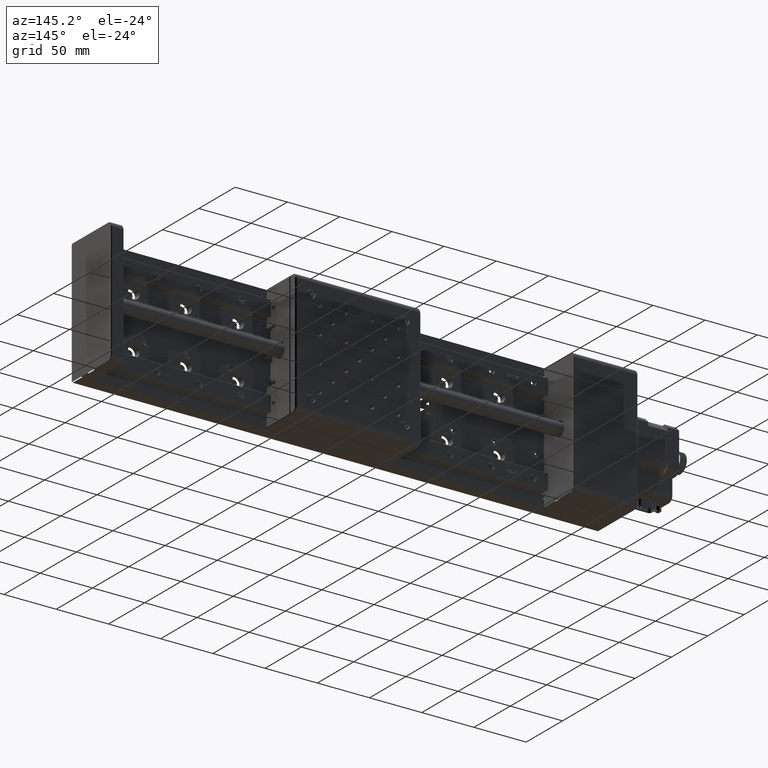
[diagram: clean part render]
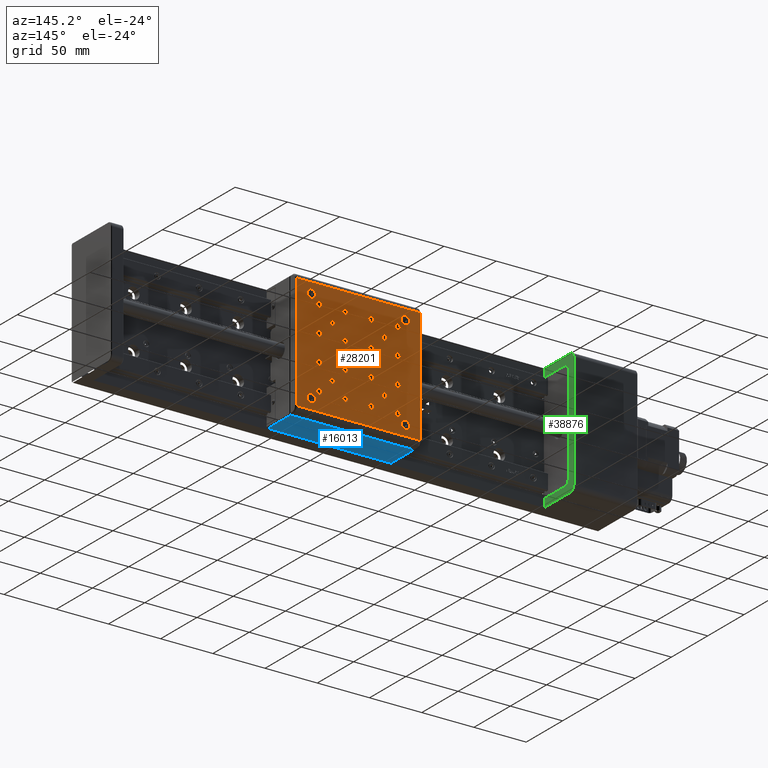
[diagram: same view with three faces highlighted in distinct colors, each labeled with its STEP entity id]
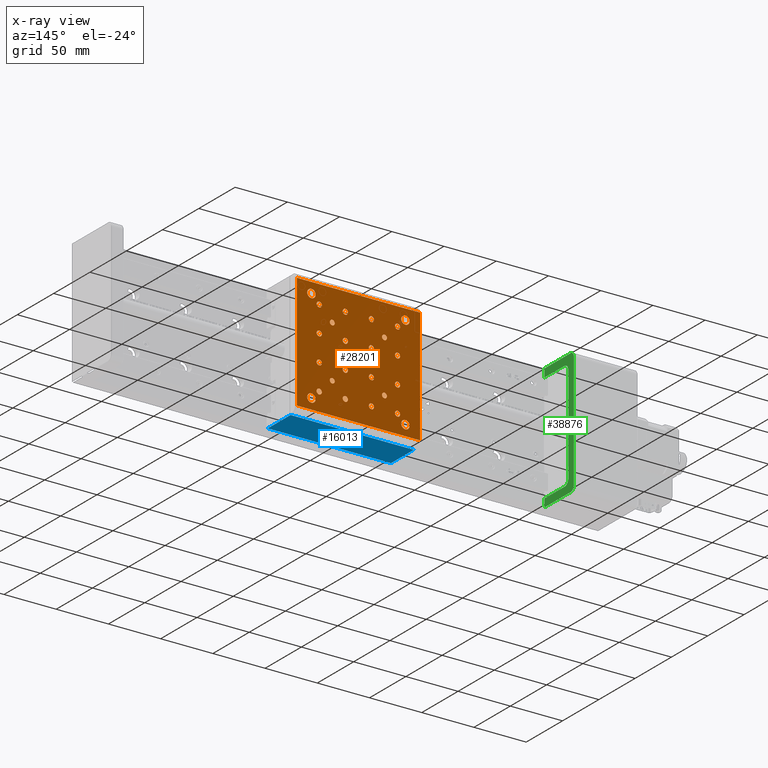
[diagram: x-ray of the same camera — body ghosted, the three highlighted faces saturated]
A machine part, auxiliary view with three faces highlighted in distinct colors.
The next image is the same camera in x-ray (body ghosted, the three faces saturated) — at least one of them is partly hidden behind the body in this view.
Their STEP definitions:

[orange] entity #28201 — the highlighted planar face has unit normal (0, -1, -0).
#44 = CIRCLE ( 'NONE', #14603, 2.500000000000002200 ) ;
#62 = CARTESIAN_POINT ( 'NONE',  ( -69.65660836600571300, 55.99999999999368300, 130.6675170193759900 ) ) ;
#145 = LINE ( 'NONE', #25422, #11281 ) ;
#210 = DIRECTION ( 'NONE',  ( 1.110223024625155600E-014, 0.0000000000000000000, 1.000000000000000000 ) ) ;
#280 = CIRCLE ( 'NONE', #38498, 2.500000000000002200 ) ;
#380 = FACE_BOUND ( 'NONE', #32188, .T. ) ;
#486 = ORIENTED_EDGE ( 'NONE', *, *, #38707, .F. ) ;
#752 = EDGE_CURVE ( 'NONE', #51167, #51560, #19968, .T. ) ;
#930 = CARTESIAN_POINT ( 'NONE',  ( -94.65660836600517300, 55.99999999999365500, 183.1675170193762200 ) ) ;
#1075 = CARTESIAN_POINT ( 'NONE',  ( -94.65660836600545700, 55.99999999999366200, 155.6675170193762200 ) ) ;
#1113 = ORIENTED_EDGE ( 'NONE', *, *, #32892, .F. ) ;
#1266 = ORIENTED_EDGE ( 'NONE', *, *, #1826, .F. ) ;
#1707 = AXIS2_PLACEMENT_3D ( 'NONE', #4629, #26132, #34028 ) ;
#1724 = CARTESIAN_POINT ( 'NONE',  ( -69.65660836600571300, 55.99999999999368300, 130.6675170193759900 ) ) ;
#1826 = EDGE_CURVE ( 'NONE', #14333, #7162, #18645, .T. ) ;
#1903 = ORIENTED_EDGE ( 'NONE', *, *, #51121, .F. ) ;
#1995 = CARTESIAN_POINT ( 'NONE',  ( -19.65660836600517700, 55.99999999999372600, 180.6675170193754500 ) ) ;
#1996 = DIRECTION ( 'NONE',  ( -1.084202172485503500E-014, 0.0000000000000000000, -1.000000000000000000 ) ) ;
#2000 = CIRCLE ( 'NONE', #6984, 2.500000000000002200 ) ;
#2008 = VERTEX_POINT ( 'NONE', #40788 ) ;
#2014 = CARTESIAN_POINT ( 'NONE',  ( -19.65660836600590900, 55.99999999999373300, 108.1675170193755200 ) ) ;
#2018 = DIRECTION ( 'NONE',  ( -1.084202172485503500E-014, 0.0000000000000000000, -1.000000000000000000 ) ) ;
#2150 = ORIENTED_EDGE ( 'NONE', *, *, #35181, .F. ) ;
#2183 = DIRECTION ( 'NONE',  ( -9.892209650289562800E-016, 1.000000000000000000, 5.551115123125781500E-017 ) ) ;
#2210 = VERTEX_POINT ( 'NONE', #12586 ) ;
#2329 = CARTESIAN_POINT ( 'NONE',  ( -82.15660836600531500, 55.99999999999366900, 165.8100904001849800 ) ) ;
#2868 = ORIENTED_EDGE ( 'NONE', *, *, #39978, .F. ) ;
#2914 = CIRCLE ( 'NONE', #17642, 4.000000000000003600 ) ;
#2937 = CARTESIAN_POINT ( 'NONE',  ( -44.65660836600592600, 55.99999999999370500, 105.6675170193757400 ) ) ;
#3107 = DIRECTION ( 'NONE',  ( 1.110223024625155600E-014, 0.0000000000000000000, 1.000000000000000000 ) ) ;
#3216 = EDGE_CURVE ( 'NONE', #9033, #46371, #21088, .T. ) ;
#3246 = CARTESIAN_POINT ( 'NONE',  ( -19.65660836600517700, 55.99999999999372600, 180.6675170193754500 ) ) ;
#3380 = VERTEX_POINT ( 'NONE', #32763 ) ;
#3385 = DIRECTION ( 'NONE',  ( 1.177367532447443400E-014, 0.0000000000000000000, 1.000000000000000000 ) ) ;
#3409 = CIRCLE ( 'NONE', #18187, 2.500000000000002200 ) ;
#3453 = EDGE_CURVE ( 'NONE', #43821, #11092, #47921, .T. ) ;
#3454 = EDGE_CURVE ( 'NONE', #52782, #39791, #7246, .T. ) ;
#3531 = CARTESIAN_POINT ( 'NONE',  ( -12.15660836600603500, 55.99999999999374000, 102.1675170193753500 ) ) ;
#3654 = DIRECTION ( 'NONE',  ( 1.110223024625155600E-014, 0.0000000000000000000, 1.000000000000000000 ) ) ;
#3833 = CARTESIAN_POINT ( 'NONE',  ( -44.65660836600518700, 55.99999999999370500, 180.6675170193757400 ) ) ;
#3886 = CARTESIAN_POINT ( 'NONE',  ( -102.1566083660060700, 55.99999999999365500, 98.16751701937634800 ) ) ;
#4015 = DIRECTION ( 'NONE',  ( -9.892209650289562800E-016, 1.000000000000000000, 5.551115123125781500E-017 ) ) ;
#4052 = VERTEX_POINT ( 'NONE', #19896 ) ;
#4097 = DIRECTION ( 'NONE',  ( -1.110223024625155600E-014, 0.0000000000000000000, -1.000000000000000000 ) ) ;
#4206 = DIRECTION ( 'NONE',  ( -9.892209650289562800E-016, 1.000000000000000000, 5.551115123125781500E-017 ) ) ;
#4235 = DIRECTION ( 'NONE',  ( -9.892209650289562800E-016, 1.000000000000000000, 5.551115123125781500E-017 ) ) ;
#4247 = EDGE_CURVE ( 'NONE', #15474, #53918, #27369, .T. ) ;
#4320 = CIRCLE ( 'NONE', #53887, 2.500000000000002200 ) ;
#4395 = CARTESIAN_POINT ( 'NONE',  ( -69.65660836600547200, 55.99999999999368300, 155.6675170193759600 ) ) ;
#4409 = DIRECTION ( 'NONE',  ( -1.110223024625155600E-014, 0.0000000000000000000, -1.000000000000000000 ) ) ;
#4411 = EDGE_LOOP ( 'NONE', ( #43298, #38618 ) ) ;
#4452 = DIRECTION ( 'NONE',  ( -9.892209650289562800E-016, 1.000000000000000000, 5.551115123125781500E-017 ) ) ;
#4458 = CARTESIAN_POINT ( 'NONE',  ( -69.65660836600547200, 55.99999999999368300, 155.6675170193759600 ) ) ;
#4629 = CARTESIAN_POINT ( 'NONE',  ( -82.15660836600577000, 55.99999999999367600, 118.1675170193761100 ) ) ;
#4963 = CARTESIAN_POINT ( 'NONE',  ( -82.15660836600577000, 55.99999999999367600, 118.1675170193761100 ) ) ;
#5040 = DIRECTION ( 'NONE',  ( -1.110223024625155600E-014, 0.0000000000000000000, -1.000000000000000000 ) ) ;
#5060 = AXIS2_PLACEMENT_3D ( 'NONE', #21952, #29775, #29954 ) ;
#5235 = VECTOR ( 'NONE', #30221, 1000.000000000000000 ) ;
#5550 = CIRCLE ( 'NONE', #43278, 2.357426619191055100 ) ;
#5608 = AXIS2_PLACEMENT_3D ( 'NONE', #46799, #13487, #51029 ) ;
#5668 = EDGE_LOOP ( 'NONE', ( #486, #40989 ) ) ;
#6088 = FACE_BOUND ( 'NONE', #45733, .T. ) ;
#6123 = CARTESIAN_POINT ( 'NONE',  ( -94.65660836600545700, 55.99999999999366200, 155.6675170193762200 ) ) ;
#6285 = VERTEX_POINT ( 'NONE', #14866 ) ;
#6302 = VERTEX_POINT ( 'NONE', #39597 ) ;
#6308 = CARTESIAN_POINT ( 'NONE',  ( -94.65660836600564200, 55.99999999999366200, 133.1675170193762200 ) ) ;
#6371 = VERTEX_POINT ( 'NONE', #23987 ) ;
#6420 = EDGE_LOOP ( 'NONE', ( #28544, #25878 ) ) ;
#6480 = DIRECTION ( 'NONE',  ( -1.110223024625155600E-014, 0.0000000000000000000, -1.000000000000000000 ) ) ;
#6700 = EDGE_CURVE ( 'NONE', #32411, #2210, #14110, .T. ) ;
#6855 = VERTEX_POINT ( 'NONE', #18251 ) ;
#6954 = ORIENTED_EDGE ( 'NONE', *, *, #13326, .F. ) ;
#6984 = AXIS2_PLACEMENT_3D ( 'NONE', #51655, #26570, #46869 ) ;
#7008 = EDGE_LOOP ( 'NONE', ( #17386, #12141 ) ) ;
#7162 = VERTEX_POINT ( 'NONE', #13366 ) ;
#7167 = VERTEX_POINT ( 'NONE', #43723 ) ;
#7171 = DIRECTION ( 'NONE',  ( 1.085435753623974200E-014, -5.551115123125781500E-017, 1.000000000000000000 ) ) ;
#7246 = CIRCLE ( 'NONE', #29316, 2.500000000000002200 ) ;
#7492 = AXIS2_PLACEMENT_3D ( 'NONE', #42466, #46503, #21097 ) ;
#7590 = EDGE_CURVE ( 'NONE', #11092, #43821, #43451, .T. ) ;
#7875 = DIRECTION ( 'NONE',  ( -9.892209650289562800E-016, 1.000000000000000000, 5.551115123125781500E-017 ) ) ;
#7973 = ORIENTED_EDGE ( 'NONE', *, *, #6700, .F. ) ;
#8360 = CIRCLE ( 'NONE', #54454, 2.500000000000002200 ) ;
#8399 = CIRCLE ( 'NONE', #47219, 2.357426619191055100 ) ;
#8637 = EDGE_CURVE ( 'NONE', #48915, #29601, #44619, .T. ) ;
#8667 = DIRECTION ( 'NONE',  ( -9.892209650289562800E-016, 1.000000000000000000, 5.551115123125781500E-017 ) ) ;
#8674 = CIRCLE ( 'NONE', #5060, 2.357426619191055100 ) ;
#8734 = DIRECTION ( 'NONE',  ( -1.110223024625155600E-014, 0.0000000000000000000, -1.000000000000000000 ) ) ;
#8934 = AXIS2_PLACEMENT_3D ( 'NONE', #2937, #36905, #3107 ) ;
#9033 = VERTEX_POINT ( 'NONE', #31912 ) ;
#9048 = EDGE_CURVE ( 'NONE', #15786, #7167, #44572, .T. ) ;
#9177 = CIRCLE ( 'NONE', #26713, 4.000000000000003600 ) ;
#9329 = CIRCLE ( 'NONE', #28024, 2.500000000000002200 ) ;
#9367 = VERTEX_POINT ( 'NONE', #930 ) ;
#9705 = CIRCLE ( 'NONE', #40528, 2.500000000000002200 ) ;
#9724 = PLANE ( 'NONE',  #26634 ) ;
#9764 = VERTEX_POINT ( 'NONE', #16832 ) ;
#9822 = EDGE_LOOP ( 'NONE', ( #22767, #1113 ) ) ;
#9934 = CIRCLE ( 'NONE', #1707, 2.357426619191041400 ) ;
#10072 = FACE_BOUND ( 'NONE', #9822, .T. ) ;
#10933 = ORIENTED_EDGE ( 'NONE', *, *, #39181, .F. ) ;
#10947 = AXIS2_PLACEMENT_3D ( 'NONE', #16754, #41627, #4409 ) ;
#11092 = VERTEX_POINT ( 'NONE', #36071 ) ;
#11210 = VECTOR ( 'NONE', #7171, 1000.000000000000000 ) ;
#11281 = VECTOR ( 'NONE', #37719, 1000.000000000000000 ) ;
#11560 = VERTEX_POINT ( 'NONE', #13231 ) ;
#11646 = AXIS2_PLACEMENT_3D ( 'NONE', #37240, #33382, #12116 ) ;
#11881 = CIRCLE ( 'NONE', #30890, 2.500000000000002200 ) ;
#11914 = CARTESIAN_POINT ( 'NONE',  ( -94.65660836600594100, 55.99999999999366200, 103.1675170193762100 ) ) ;
#12103 = DIRECTION ( 'NONE',  ( -1.110223024625155600E-014, 0.0000000000000000000, -1.000000000000000000 ) ) ;
#12116 = DIRECTION ( 'NONE',  ( 1.110223024625155600E-014, 0.0000000000000000000, 1.000000000000000000 ) ) ;
#12141 = ORIENTED_EDGE ( 'NONE', *, *, #51511, .F. ) ;
#12168 = VERTEX_POINT ( 'NONE', #6308 ) ;
#12300 = CARTESIAN_POINT ( 'NONE',  ( -44.65660836600594800, 55.99999999999370500, 103.1675170193757400 ) ) ;
#12324 = DIRECTION ( 'NONE',  ( -1.110223024625155600E-014, 0.0000000000000000000, -1.000000000000000000 ) ) ;
#12526 = CARTESIAN_POINT ( 'NONE',  ( -69.65660836600594100, 55.99999999999368300, 105.6675170193759900 ) ) ;
#12586 = CARTESIAN_POINT ( 'NONE',  ( -44.65660836600542200, 55.99999999999370500, 158.1675170193757400 ) ) ;
#12658 = FACE_BOUND ( 'NONE', #17787, .T. ) ;
#12795 = AXIS2_PLACEMENT_3D ( 'NONE', #16801, #33672, #29615 ) ;
#13044 = AXIS2_PLACEMENT_3D ( 'NONE', #50489, #42245, #29437 ) ;
#13155 = CARTESIAN_POINT ( 'NONE',  ( -69.65660836600542900, 55.99999999999368300, 158.1675170193759900 ) ) ;
#13231 = CARTESIAN_POINT ( 'NONE',  ( -94.65660836600569900, 55.99999999999366200, 128.1675170193761900 ) ) ;
#13326 = EDGE_CURVE ( 'NONE', #20187, #9367, #9329, .T. ) ;
#13366 = CARTESIAN_POINT ( 'NONE',  ( -19.65660836600596500, 55.99999999999373300, 103.1675170193755100 ) ) ;
#13420 = EDGE_CURVE ( 'NONE', #11560, #12168, #11881, .T. ) ;
#13470 = ORIENTED_EDGE ( 'NONE', *, *, #18726, .T. ) ;
#13487 = DIRECTION ( 'NONE',  ( -9.892209650289562800E-016, 1.000000000000000000, 5.551115123125781500E-017 ) ) ;
#13601 = CARTESIAN_POINT ( 'NONE',  ( -19.65660836600572400, 55.99999999999373300, 130.6675170193755400 ) ) ;
#13698 = DIRECTION ( 'NONE',  ( -9.892209650289562800E-016, 1.000000000000000000, 5.551115123125781500E-017 ) ) ;
#13752 = EDGE_CURVE ( 'NONE', #6371, #4052, #9934, .T. ) ;
#13764 = DIRECTION ( 'NONE',  ( 1.110223024625155600E-014, 0.0000000000000000000, 1.000000000000000000 ) ) ;
#13830 = CARTESIAN_POINT ( 'NONE',  ( -94.65660836600520200, 55.99999999999365500, 180.6675170193762200 ) ) ;
#13866 = FACE_BOUND ( 'NONE', #44387, .T. ) ;
#13908 = CIRCLE ( 'NONE', #42708, 2.500000000000002200 ) ;
#14092 = DIRECTION ( 'NONE',  ( -1.110223024625155600E-014, 0.0000000000000000000, -1.000000000000000000 ) ) ;
#14110 = CIRCLE ( 'NONE', #5608, 2.500000000000002200 ) ;
#14142 = DIRECTION ( 'NONE',  ( -9.892209650289562800E-016, 1.000000000000000000, 5.551115123125781500E-017 ) ) ;
#14287 = EDGE_LOOP ( 'NONE', ( #35156, #42574 ) ) ;
#14333 = VERTEX_POINT ( 'NONE', #2014 ) ;
#14419 = ORIENTED_EDGE ( 'NONE', *, *, #33725, .F. ) ;
#14603 = AXIS2_PLACEMENT_3D ( 'NONE', #30071, #22313, #35297 ) ;
#14620 = AXIS2_PLACEMENT_3D ( 'NONE', #34611, #25976, #5040 ) ;
#14763 = VERTEX_POINT ( 'NONE', #35693 ) ;
#14866 = CARTESIAN_POINT ( 'NONE',  ( -19.65660836600569200, 55.99999999999373300, 133.1675170193755400 ) ) ;
#14912 = AXIS2_PLACEMENT_3D ( 'NONE', #16975, #29233, #46248 ) ;
#14950 = DIRECTION ( 'NONE',  ( -9.892209650289562800E-016, 1.000000000000000000, 5.551115123125781500E-017 ) ) ;
#15044 = ORIENTED_EDGE ( 'NONE', *, *, #39491, .F. ) ;
#15345 = EDGE_CURVE ( 'NONE', #29535, #25966, #9177, .T. ) ;
#15474 = VERTEX_POINT ( 'NONE', #19645 ) ;
#15638 = EDGE_LOOP ( 'NONE', ( #41072, #31268 ) ) ;
#15724 = EDGE_LOOP ( 'NONE', ( #37248, #25851 ) ) ;
#15776 = CARTESIAN_POINT ( 'NONE',  ( -102.1566083660060700, 55.99999999999365500, 98.16751701937634800 ) ) ;
#15786 = VERTEX_POINT ( 'NONE', #43596 ) ;
#15810 = DIRECTION ( 'NONE',  ( -9.892209650289562800E-016, 1.000000000000000000, 5.551115123125781500E-017 ) ) ;
#16089 = ORIENTED_EDGE ( 'NONE', *, *, #41367, .T. ) ;
#16152 = DIRECTION ( 'NONE',  ( 1.000000000000000000, 9.892209650289541100E-016, -1.085435753623975300E-014 ) ) ;
#16591 = CARTESIAN_POINT ( 'NONE',  ( -32.15660836600534400, 55.99999999999371900, 165.8100904001845500 ) ) ;
#16650 = CIRCLE ( 'NONE', #41571, 4.000000000000003600 ) ;
#16718 = ORIENTED_EDGE ( 'NONE', *, *, #44116, .F. ) ;
#16733 = AXIS2_PLACEMENT_3D ( 'NONE', #3833, #37452, #12324 ) ;
#16754 = CARTESIAN_POINT ( 'NONE',  ( -57.15660836600559200, 55.99999999999369000, 143.1675170193758500 ) ) ;
#16801 = CARTESIAN_POINT ( 'NONE',  ( -12.15660836600509300, 55.99999999999373300, 188.1675170193753700 ) ) ;
#16832 = CARTESIAN_POINT ( 'NONE',  ( -102.1566083660051400, 55.99999999999365500, 184.1675170193763600 ) ) ;
#16975 = CARTESIAN_POINT ( 'NONE',  ( -19.65660836600544700, 55.99999999999373300, 155.6675170193754500 ) ) ;
#16983 = DIRECTION ( 'NONE',  ( 1.110223024625155600E-014, 0.0000000000000000000, 1.000000000000000000 ) ) ;
#17011 = EDGE_CURVE ( 'NONE', #22183, #38826, #39180, .T. ) ;
#17283 = CARTESIAN_POINT ( 'NONE',  ( -69.65660836600568500, 55.99999999999368300, 133.1675170193759900 ) ) ;
#17386 = ORIENTED_EDGE ( 'NONE', *, *, #17011, .F. ) ;
#17496 = CARTESIAN_POINT ( 'NONE',  ( -12.15660836600607900, 55.99999999999374000, 98.16751701937533900 ) ) ;
#17513 = ORIENTED_EDGE ( 'NONE', *, *, #33008, .F. ) ;
#17560 = CIRCLE ( 'NONE', #12795, 4.000000000000003600 ) ;
#17642 = AXIS2_PLACEMENT_3D ( 'NONE', #17725, #13698, #46829 ) ;
#17671 = CARTESIAN_POINT ( 'NONE',  ( -82.15660836600530100, 55.99999999999366900, 168.1675170193760200 ) ) ;
#17725 = CARTESIAN_POINT ( 'NONE',  ( -102.1566083660051000, 55.99999999999365500, 188.1675170193763600 ) ) ;
#17753 = VERTEX_POINT ( 'NONE', #44348 ) ;
#17787 = EDGE_LOOP ( 'NONE', ( #49428, #44551 ) ) ;
#17895 = VERTEX_POINT ( 'NONE', #12300 ) ;
#18081 = CARTESIAN_POINT ( 'NONE',  ( -44.65660836600548600, 55.99999999999370500, 153.1675170193757400 ) ) ;
#18187 = AXIS2_PLACEMENT_3D ( 'NONE', #41567, #41932, #46522 ) ;
#18251 = CARTESIAN_POINT ( 'NONE',  ( -19.65660836600520500, 55.99999999999372600, 178.1675170193754500 ) ) ;
#18606 = ORIENTED_EDGE ( 'NONE', *, *, #3216, .F. ) ;
#18645 = CIRCLE ( 'NONE', #27864, 2.500000000000002200 ) ;
#18726 = EDGE_CURVE ( 'NONE', #45933, #48915, #26243, .T. ) ;
#19006 = AXIS2_PLACEMENT_3D ( 'NONE', #27555, #22705, #6480 ) ;
#19332 = CIRCLE ( 'NONE', #19006, 2.500000000000002200 ) ;
#19563 = AXIS2_PLACEMENT_3D ( 'NONE', #39972, #47847, #1996 ) ;
#19571 = EDGE_LOOP ( 'NONE', ( #26045, #18606 ) ) ;
#19645 = CARTESIAN_POINT ( 'NONE',  ( -69.65660836600589800, 55.99999999999368300, 108.1675170193759900 ) ) ;
#19794 = AXIS2_PLACEMENT_3D ( 'NONE', #17496, #47331, #42931 ) ;
#19854 = CARTESIAN_POINT ( 'NONE',  ( -44.65660836600567100, 55.99999999999370500, 133.1675170193757400 ) ) ;
#19862 = DIRECTION ( 'NONE',  ( 1.110223024625155600E-014, 0.0000000000000000000, 1.000000000000000000 ) ) ;
#19896 = CARTESIAN_POINT ( 'NONE',  ( -82.15660836600572700, 55.99999999999367600, 120.5249436385671500 ) ) ;
#19968 = CIRCLE ( 'NONE', #23651, 2.500000000000002200 ) ;
#20072 = CARTESIAN_POINT ( 'NONE',  ( -94.65660836600523000, 55.99999999999365500, 178.1675170193762200 ) ) ;
#20165 = DIRECTION ( 'NONE',  ( -9.892209650289562800E-016, 1.000000000000000000, 5.551115123125781500E-017 ) ) ;
#20187 = VERTEX_POINT ( 'NONE', #20072 ) ;
#20227 = EDGE_LOOP ( 'NONE', ( #38114, #22502 ) ) ;
#20286 = ORIENTED_EDGE ( 'NONE', *, *, #47979, .F. ) ;
#20355 = EDGE_LOOP ( 'NONE', ( #46962, #16718 ) ) ;
#20364 = CARTESIAN_POINT ( 'NONE',  ( -94.65660836600520200, 55.99999999999365500, 180.6675170193762200 ) ) ;
#20372 = EDGE_CURVE ( 'NONE', #6302, #53335, #8399, .T. ) ;
#20420 = CARTESIAN_POINT ( 'NONE',  ( -19.65660836600594100, 55.99999999999373300, 105.6675170193755200 ) ) ;
#20559 = CARTESIAN_POINT ( 'NONE',  ( -94.65660836600586900, 55.99999999999366200, 108.1675170193762200 ) ) ;
#20619 = DIRECTION ( 'NONE',  ( -1.110223024625155600E-014, 0.0000000000000000000, -1.000000000000000000 ) ) ;
#20728 = EDGE_CURVE ( 'NONE', #3380, #6855, #9705, .T. ) ;
#20990 = DIRECTION ( 'NONE',  ( 1.110223024625155600E-014, 0.0000000000000000000, 1.000000000000000000 ) ) ;
#21005 = CARTESIAN_POINT ( 'NONE',  ( -19.65660836600572400, 55.99999999999373300, 130.6675170193755400 ) ) ;
#21088 = CIRCLE ( 'NONE', #31437, 2.357426619191055100 ) ;
#21097 = DIRECTION ( 'NONE',  ( -1.110223024625155600E-014, 0.0000000000000000000, -1.000000000000000000 ) ) ;
#21234 = DIRECTION ( 'NONE',  ( -1.040834085586083300E-014, 0.0000000000000000000, -1.000000000000000000 ) ) ;
#21240 = CIRCLE ( 'NONE', #26629, 2.500000000000002200 ) ;
#21277 = FACE_BOUND ( 'NONE', #22320, .T. ) ;
#21398 = CARTESIAN_POINT ( 'NONE',  ( -102.1566083660050600, 55.99999999999365500, 192.1675170193763600 ) ) ;
#21530 = DIRECTION ( 'NONE',  ( -1.177367532447450200E-014, 0.0000000000000000000, -1.000000000000000000 ) ) ;
#21779 = EDGE_CURVE ( 'NONE', #39791, #52782, #52737, .T. ) ;
#21952 = CARTESIAN_POINT ( 'NONE',  ( -82.15660836600530100, 55.99999999999366900, 168.1675170193760200 ) ) ;
#22183 = VERTEX_POINT ( 'NONE', #46775 ) ;
#22313 = DIRECTION ( 'NONE',  ( -9.892209650289562800E-016, 1.000000000000000000, 5.551115123125781500E-017 ) ) ;
#22320 = EDGE_LOOP ( 'NONE', ( #14419, #28792 ) ) ;
#22502 = ORIENTED_EDGE ( 'NONE', *, *, #20372, .F. ) ;
#22516 = VERTEX_POINT ( 'NONE', #20559 ) ;
#22618 = EDGE_CURVE ( 'NONE', #35450, #29872, #3409, .T. ) ;
#22650 = EDGE_CURVE ( 'NONE', #52752, #39619, #21240, .T. ) ;
#22659 = AXIS2_PLACEMENT_3D ( 'NONE', #21005, #4235, #210 ) ;
#22669 = AXIS2_PLACEMENT_3D ( 'NONE', #4963, #30484, #21530 ) ;
#22705 = DIRECTION ( 'NONE',  ( -9.892209650289562800E-016, 1.000000000000000000, 5.551115123125781500E-017 ) ) ;
#22767 = ORIENTED_EDGE ( 'NONE', *, *, #9048, .F. ) ;
#22802 = DIRECTION ( 'NONE',  ( 1.110223024625155600E-014, 0.0000000000000000000, 1.000000000000000000 ) ) ;
#22957 = CARTESIAN_POINT ( 'NONE',  ( -44.65660836600545700, 55.99999999999370500, 155.6675170193757400 ) ) ;
#23544 = EDGE_LOOP ( 'NONE', ( #38461, #41418 ) ) ;
#23545 = EDGE_CURVE ( 'NONE', #25966, #29535, #34219, .T. ) ;
#23651 = AXIS2_PLACEMENT_3D ( 'NONE', #4458, #33849, #16983 ) ;
#23849 = DIRECTION ( 'NONE',  ( -9.892209650289562800E-016, 1.000000000000000000, 5.551115123125781500E-017 ) ) ;
#23877 = CIRCLE ( 'NONE', #19563, 4.000000000000003600 ) ;
#23987 = CARTESIAN_POINT ( 'NONE',  ( -82.15660836600579800, 55.99999999999367600, 115.8100904001850800 ) ) ;
#24007 = CARTESIAN_POINT ( 'NONE',  ( -57.15660836600562100, 55.99999999999369000, 140.6675170193758500 ) ) ;
#24031 = DIRECTION ( 'NONE',  ( -9.892209650289562800E-016, 1.000000000000000000, 5.551115123125781500E-017 ) ) ;
#24699 = EDGE_CURVE ( 'NONE', #26547, #28572, #17560, .T. ) ;
#25044 = DIRECTION ( 'NONE',  ( -9.892209650289562800E-016, 1.000000000000000000, 5.551115123125781500E-017 ) ) ;
#25112 = FACE_BOUND ( 'NONE', #20227, .T. ) ;
#25251 = EDGE_CURVE ( 'NONE', #7162, #14333, #4320, .T. ) ;
#25422 = CARTESIAN_POINT ( 'NONE',  ( 1.843391633994412300, 55.99999999999375400, 143.1675170193752300 ) ) ;
#25453 = CARTESIAN_POINT ( 'NONE',  ( -69.65660836600515900, 55.99999999999368300, 183.1675170193759600 ) ) ;
#25730 = AXIS2_PLACEMENT_3D ( 'NONE', #4395, #4015, #45810 ) ;
#25812 = ORIENTED_EDGE ( 'NONE', *, *, #50704, .F. ) ;
#25851 = ORIENTED_EDGE ( 'NONE', *, *, #32731, .F. ) ;
#25878 = ORIENTED_EDGE ( 'NONE', *, *, #3453, .F. ) ;
#25966 = VERTEX_POINT ( 'NONE', #3531 ) ;
#25976 = DIRECTION ( 'NONE',  ( -9.892209650289562800E-016, 1.000000000000000000, 5.551115123125781500E-017 ) ) ;
#26045 = ORIENTED_EDGE ( 'NONE', *, *, #53586, .F. ) ;
#26122 = CARTESIAN_POINT ( 'NONE',  ( -94.65660836600548600, 55.99999999999366200, 153.1675170193762200 ) ) ;
#26127 = VERTEX_POINT ( 'NONE', #21398 ) ;
#26132 = DIRECTION ( 'NONE',  ( -9.892209650289562800E-016, 1.000000000000000000, 5.551115123125781500E-017 ) ) ;
#26243 = LINE ( 'NONE', #42462, #5235 ) ;
#26352 = EDGE_CURVE ( 'NONE', #39619, #52752, #280, .T. ) ;
#26455 = FACE_BOUND ( 'NONE', #53060, .T. ) ;
#26547 = VERTEX_POINT ( 'NONE', #32490 ) ;
#26570 = DIRECTION ( 'NONE',  ( -9.892209650289562800E-016, 1.000000000000000000, 5.551115123125781500E-017 ) ) ;
#26629 = AXIS2_PLACEMENT_3D ( 'NONE', #1075, #51124, #13764 ) ;
#26634 = AXIS2_PLACEMENT_3D ( 'NONE', #35036, #39228, #47988 ) ;
#26713 = AXIS2_PLACEMENT_3D ( 'NONE', #35986, #51920, #2018 ) ;
#26829 = DIRECTION ( 'NONE',  ( 1.177367532447443400E-014, 0.0000000000000000000, 1.000000000000000000 ) ) ;
#26875 = DIRECTION ( 'NONE',  ( -9.892209650289562800E-016, 1.000000000000000000, 5.551115123125781500E-017 ) ) ;
#26933 = CIRCLE ( 'NONE', #37942, 4.000000000000003600 ) ;
#27027 = EDGE_LOOP ( 'NONE', ( #28350, #1903 ) ) ;
#27064 = FACE_BOUND ( 'NONE', #45135, .T. ) ;
#27087 = FACE_BOUND ( 'NONE', #40339, .T. ) ;
#27369 = CIRCLE ( 'NONE', #35482, 2.500000000000002200 ) ;
#27528 = CARTESIAN_POINT ( 'NONE',  ( -94.65660836600542900, 55.99999999999366200, 158.1675170193762200 ) ) ;
#27555 = CARTESIAN_POINT ( 'NONE',  ( -94.65660836600591200, 55.99999999999366200, 105.6675170193762100 ) ) ;
#27657 = CIRCLE ( 'NONE', #8934, 2.500000000000002200 ) ;
#27661 = CARTESIAN_POINT ( 'NONE',  ( -116.1566083660050000, 55.99999999999364100, 198.1675170193765600 ) ) ;
#27810 = DIRECTION ( 'NONE',  ( -9.892209650289562800E-016, 1.000000000000000000, 5.551115123125781500E-017 ) ) ;
#27864 = AXIS2_PLACEMENT_3D ( 'NONE', #29379, #46011, #20990 ) ;
#28024 = AXIS2_PLACEMENT_3D ( 'NONE', #20364, #29302, #28928 ) ;
#28068 = CARTESIAN_POINT ( 'NONE',  ( -44.65660836600571300, 55.99999999999370500, 130.6675170193757400 ) ) ;
#28201 = ADVANCED_FACE ( 'NONE', ( #42860, #41466, #380, #21277, #48995, #27064, #13866, #36168, #12658, #32329, #10072, #44723, #46045, #38918, #6088, #35004, #25112, #46708, #53299, #50004, #47409, #26455, #42125, #48054, #33647, #27087 ), #9724, .F. ) ;
#28350 = ORIENTED_EDGE ( 'NONE', *, *, #752, .F. ) ;
#28391 = CIRCLE ( 'NONE', #48894, 4.000000000000003600 ) ;
#28544 = ORIENTED_EDGE ( 'NONE', *, *, #7590, .F. ) ;
#28572 = VERTEX_POINT ( 'NONE', #34448 ) ;
#28792 = ORIENTED_EDGE ( 'NONE', *, *, #4247, .F. ) ;
#28916 = DIRECTION ( 'NONE',  ( 1.110223024625155600E-014, 0.0000000000000000000, 1.000000000000000000 ) ) ;
#28928 = DIRECTION ( 'NONE',  ( 1.110223024625155600E-014, 0.0000000000000000000, 1.000000000000000000 ) ) ;
#29230 = VERTEX_POINT ( 'NONE', #54112 ) ;
#29233 = DIRECTION ( 'NONE',  ( -9.892209650289562800E-016, 1.000000000000000000, 5.551115123125781500E-017 ) ) ;
#29302 = DIRECTION ( 'NONE',  ( -9.892209650289562800E-016, 1.000000000000000000, 5.551115123125781500E-017 ) ) ;
#29316 = AXIS2_PLACEMENT_3D ( 'NONE', #62, #25044, #8734 ) ;
#29321 = LINE ( 'NONE', #40857, #52942 ) ;
#29350 = VERTEX_POINT ( 'NONE', #34144 ) ;
#29379 = CARTESIAN_POINT ( 'NONE',  ( -19.65660836600594100, 55.99999999999373300, 105.6675170193755200 ) ) ;
#29437 = DIRECTION ( 'NONE',  ( -1.177367532447443400E-014, 0.0000000000000000000, -1.000000000000000000 ) ) ;
#29535 = VERTEX_POINT ( 'NONE', #51893 ) ;
#29601 = VERTEX_POINT ( 'NONE', #27661 ) ;
#29615 = DIRECTION ( 'NONE',  ( -1.084202172485503500E-014, 0.0000000000000000000, -1.000000000000000000 ) ) ;
#29775 = DIRECTION ( 'NONE',  ( -9.892209650289562800E-016, 1.000000000000000000, 5.551115123125781500E-017 ) ) ;
#29872 = VERTEX_POINT ( 'NONE', #25453 ) ;
#29954 = DIRECTION ( 'NONE',  ( 1.177367532447443400E-014, 0.0000000000000000000, 1.000000000000000000 ) ) ;
#30071 = CARTESIAN_POINT ( 'NONE',  ( -44.65660836600571300, 55.99999999999370500, 130.6675170193757400 ) ) ;
#30120 = CARTESIAN_POINT ( 'NONE',  ( -57.15660836600555700, 55.99999999999369000, 145.6675170193758500 ) ) ;
#30221 = DIRECTION ( 'NONE',  ( -1.000000000000000000, -9.892209650289541100E-016, 1.085435753623975300E-014 ) ) ;
#30364 = ORIENTED_EDGE ( 'NONE', *, *, #8637, .T. ) ;
#30484 = DIRECTION ( 'NONE',  ( -9.892209650289562800E-016, 1.000000000000000000, 5.551115123125781500E-017 ) ) ;
#30890 = AXIS2_PLACEMENT_3D ( 'NONE', #52619, #24031, #39983 ) ;
#31060 = DIRECTION ( 'NONE',  ( -9.892209650289562800E-016, 1.000000000000000000, 5.551115123125781500E-017 ) ) ;
#31178 = EDGE_CURVE ( 'NONE', #51458, #31256, #52991, .T. ) ;
#31256 = VERTEX_POINT ( 'NONE', #30120 ) ;
#31268 = ORIENTED_EDGE ( 'NONE', *, *, #52099, .F. ) ;
#31298 = DIRECTION ( 'NONE',  ( -9.892209650289562800E-016, 1.000000000000000000, 5.551115123125781500E-017 ) ) ;
#31346 = CARTESIAN_POINT ( 'NONE',  ( -32.15660836600531500, 55.99999999999371900, 168.1675170193755900 ) ) ;
#31437 = AXIS2_PLACEMENT_3D ( 'NONE', #31346, #14142, #47816 ) ;
#31592 = CIRCLE ( 'NONE', #13044, 2.357426619191055100 ) ;
#31905 = CARTESIAN_POINT ( 'NONE',  ( -32.15660836600578400, 55.99999999999371900, 120.5249436385667000 ) ) ;
#31912 = CARTESIAN_POINT ( 'NONE',  ( -32.15660836600527300, 55.99999999999371900, 170.5249436385666700 ) ) ;
#32188 = EDGE_LOOP ( 'NONE', ( #2150, #17513 ) ) ;
#32329 = FACE_BOUND ( 'NONE', #53676, .T. ) ;
#32411 = VERTEX_POINT ( 'NONE', #18081 ) ;
#32449 = ORIENTED_EDGE ( 'NONE', *, *, #21779, .F. ) ;
#32490 = CARTESIAN_POINT ( 'NONE',  ( -12.15660836600504900, 55.99999999999373300, 192.1675170193753700 ) ) ;
#32690 = AXIS2_PLACEMENT_3D ( 'NONE', #22957, #27810, #36458 ) ;
#32731 = EDGE_CURVE ( 'NONE', #4052, #6371, #36325, .T. ) ;
#32763 = CARTESIAN_POINT ( 'NONE',  ( -19.65660836600514500, 55.99999999999372600, 183.1675170193754500 ) ) ;
#32862 = AXIS2_PLACEMENT_3D ( 'NONE', #42058, #41690, #4097 ) ;
#32892 = EDGE_CURVE ( 'NONE', #7167, #15786, #52705, .T. ) ;
#33008 = EDGE_CURVE ( 'NONE', #17753, #29230, #28391, .T. ) ;
#33082 = CARTESIAN_POINT ( 'NONE',  ( -116.1566083660062000, 55.99999999999364100, 88.16751701937653300 ) ) ;
#33158 = EDGE_CURVE ( 'NONE', #51277, #22516, #49982, .T. ) ;
#33242 = ORIENTED_EDGE ( 'NONE', *, *, #22618, .F. ) ;
#33382 = DIRECTION ( 'NONE',  ( -9.892209650289562800E-016, 1.000000000000000000, 5.551115123125781500E-017 ) ) ;
#33647 = FACE_OUTER_BOUND ( 'NONE', #36055, .T. ) ;
#33672 = DIRECTION ( 'NONE',  ( -9.892209650289562800E-016, 1.000000000000000000, 5.551115123125781500E-017 ) ) ;
#33725 = EDGE_CURVE ( 'NONE', #53918, #15474, #49373, .T. ) ;
#33779 = CARTESIAN_POINT ( 'NONE',  ( 1.843391633995008900, 55.99999999999374700, 198.1675170193752800 ) ) ;
#33849 = DIRECTION ( 'NONE',  ( -9.892209650289562800E-016, 1.000000000000000000, 5.551115123125781500E-017 ) ) ;
#33886 = CARTESIAN_POINT ( 'NONE',  ( -32.15660836600581300, 55.99999999999371900, 118.1675170193756400 ) ) ;
#34028 = DIRECTION ( 'NONE',  ( -1.177367532447450200E-014, 0.0000000000000000000, -1.000000000000000000 ) ) ;
#34144 = CARTESIAN_POINT ( 'NONE',  ( -44.65660836600572700, 55.99999999999370500, 128.1675170193757400 ) ) ;
#34219 = CIRCLE ( 'NONE', #19794, 4.000000000000003600 ) ;
#34448 = CARTESIAN_POINT ( 'NONE',  ( -12.15660836600513800, 55.99999999999373300, 184.1675170193753700 ) ) ;
#34611 = CARTESIAN_POINT ( 'NONE',  ( -69.65660836600594100, 55.99999999999368300, 105.6675170193759900 ) ) ;
#34663 = AXIS2_PLACEMENT_3D ( 'NONE', #13601, #51537, #22802 ) ;
#34769 = VERTEX_POINT ( 'NONE', #19854 ) ;
#34788 = DIRECTION ( 'NONE',  ( -1.110223024625155600E-014, 0.0000000000000000000, -1.000000000000000000 ) ) ;
#35004 = FACE_BOUND ( 'NONE', #15724, .T. ) ;
#35036 = CARTESIAN_POINT ( 'NONE',  ( -57.15660836600559200, 55.99999999999369000, 143.1675170193758500 ) ) ;
#35156 = ORIENTED_EDGE ( 'NONE', *, *, #35841, .F. ) ;
#35181 = EDGE_CURVE ( 'NONE', #29230, #17753, #16650, .T. ) ;
#35258 = DIRECTION ( 'NONE',  ( -1.110223024625155600E-014, 0.0000000000000000000, -1.000000000000000000 ) ) ;
#35268 = CIRCLE ( 'NONE', #48350, 2.500000000000002200 ) ;
#35297 = DIRECTION ( 'NONE',  ( 1.110223024625155600E-014, 0.0000000000000000000, 1.000000000000000000 ) ) ;
#35300 = ORIENTED_EDGE ( 'NONE', *, *, #33158, .F. ) ;
#35402 = EDGE_LOOP ( 'NONE', ( #45621, #41815 ) ) ;
#35450 = VERTEX_POINT ( 'NONE', #44537 ) ;
#35482 = AXIS2_PLACEMENT_3D ( 'NONE', #12526, #8667, #20619 ) ;
#35644 = CARTESIAN_POINT ( 'NONE',  ( -69.65660836600574200, 55.99999999999368300, 128.1675170193759900 ) ) ;
#35693 = CARTESIAN_POINT ( 'NONE',  ( -19.65660836600574900, 55.99999999999373300, 128.1675170193755400 ) ) ;
#35841 = EDGE_CURVE ( 'NONE', #28572, #26547, #23877, .T. ) ;
#35986 = CARTESIAN_POINT ( 'NONE',  ( -12.15660836600607900, 55.99999999999374000, 98.16751701937533900 ) ) ;
#36055 = EDGE_LOOP ( 'NONE', ( #16089, #41613, #13470, #30364 ) ) ;
#36071 = CARTESIAN_POINT ( 'NONE',  ( -44.65660836600521600, 55.99999999999370500, 178.1675170193757100 ) ) ;
#36168 = FACE_BOUND ( 'NONE', #27027, .T. ) ;
#36255 = AXIS2_PLACEMENT_3D ( 'NONE', #41148, #49941, #3385 ) ;
#36325 = CIRCLE ( 'NONE', #22669, 2.357426619191041400 ) ;
#36458 = DIRECTION ( 'NONE',  ( -1.110223024625155600E-014, 0.0000000000000000000, -1.000000000000000000 ) ) ;
#36593 = VERTEX_POINT ( 'NONE', #33779 ) ;
#36905 = DIRECTION ( 'NONE',  ( -9.892209650289562800E-016, 1.000000000000000000, 5.551115123125781500E-017 ) ) ;
#36981 = AXIS2_PLACEMENT_3D ( 'NONE', #39194, #31298, #14092 ) ;
#37155 = EDGE_CURVE ( 'NONE', #29872, #35450, #13908, .T. ) ;
#37203 = EDGE_LOOP ( 'NONE', ( #35300, #20286 ) ) ;
#37240 = CARTESIAN_POINT ( 'NONE',  ( -44.65660836600592600, 55.99999999999370500, 105.6675170193757400 ) ) ;
#37248 = ORIENTED_EDGE ( 'NONE', *, *, #13752, .F. ) ;
#37452 = DIRECTION ( 'NONE',  ( -9.892209650289562800E-016, 1.000000000000000000, 5.551115123125781500E-017 ) ) ;
#37491 = CARTESIAN_POINT ( 'NONE',  ( -102.1566083660051000, 55.99999999999365500, 188.1675170193763600 ) ) ;
#37719 = DIRECTION ( 'NONE',  ( -1.085435753623974200E-014, 5.551115123125781500E-017, -1.000000000000000000 ) ) ;
#37906 = ORIENTED_EDGE ( 'NONE', *, *, #49099, .F. ) ;
#37942 = AXIS2_PLACEMENT_3D ( 'NONE', #37491, #53980, #49543 ) ;
#38114 = ORIENTED_EDGE ( 'NONE', *, *, #43836, .F. ) ;
#38166 = AXIS2_PLACEMENT_3D ( 'NONE', #1724, #26875, #34788 ) ;
#38440 = CIRCLE ( 'NONE', #34663, 2.500000000000002200 ) ;
#38461 = ORIENTED_EDGE ( 'NONE', *, *, #31178, .F. ) ;
#38498 = AXIS2_PLACEMENT_3D ( 'NONE', #6123, #14950, #39686 ) ;
#38618 = ORIENTED_EDGE ( 'NONE', *, *, #23545, .F. ) ;
#38623 = ORIENTED_EDGE ( 'NONE', *, *, #25251, .F. ) ;
#38707 = EDGE_CURVE ( 'NONE', #6855, #3380, #40091, .T. ) ;
#38826 = VERTEX_POINT ( 'NONE', #31905 ) ;
#38918 = FACE_BOUND ( 'NONE', #50932, .T. ) ;
#39180 = CIRCLE ( 'NONE', #36255, 2.357426619191055100 ) ;
#39181 = EDGE_CURVE ( 'NONE', #12168, #11560, #2000, .T. ) ;
#39194 = CARTESIAN_POINT ( 'NONE',  ( -57.15660836600559200, 55.99999999999369000, 143.1675170193758500 ) ) ;
#39228 = DIRECTION ( 'NONE',  ( 9.892209650289562800E-016, -1.000000000000000000, -5.551115123126855100E-017 ) ) ;
#39432 = CARTESIAN_POINT ( 'NONE',  ( 1.843391633993815700, 55.99999999999375400, 88.16751701937525400 ) ) ;
#39476 = DIRECTION ( 'NONE',  ( 1.110223024625155600E-014, 0.0000000000000000000, 1.000000000000000000 ) ) ;
#39491 = EDGE_CURVE ( 'NONE', #26127, #9764, #26933, .T. ) ;
#39597 = CARTESIAN_POINT ( 'NONE',  ( -82.15660836600525800, 55.99999999999366900, 170.5249436385670700 ) ) ;
#39619 = VERTEX_POINT ( 'NONE', #26122 ) ;
#39686 = DIRECTION ( 'NONE',  ( 1.110223024625155600E-014, 0.0000000000000000000, 1.000000000000000000 ) ) ;
#39791 = VERTEX_POINT ( 'NONE', #17283 ) ;
#39831 = ORIENTED_EDGE ( 'NONE', *, *, #37155, .F. ) ;
#39972 = CARTESIAN_POINT ( 'NONE',  ( -12.15660836600509300, 55.99999999999373300, 188.1675170193753700 ) ) ;
#39978 = EDGE_CURVE ( 'NONE', #2210, #32411, #43848, .T. ) ;
#39983 = DIRECTION ( 'NONE',  ( -1.110223024625155600E-014, 0.0000000000000000000, -1.000000000000000000 ) ) ;
#40091 = CIRCLE ( 'NONE', #45882, 2.500000000000002200 ) ;
#40339 = EDGE_LOOP ( 'NONE', ( #25812, #15044 ) ) ;
#40528 = AXIS2_PLACEMENT_3D ( 'NONE', #3246, #7875, #12103 ) ;
#40788 = CARTESIAN_POINT ( 'NONE',  ( -44.65660836600589100, 55.99999999999370500, 108.1675170193757400 ) ) ;
#40857 = CARTESIAN_POINT ( 'NONE',  ( -57.15660836600499600, 55.99999999999369000, 198.1675170193759400 ) ) ;
#40989 = ORIENTED_EDGE ( 'NONE', *, *, #20728, .F. ) ;
#41072 = ORIENTED_EDGE ( 'NONE', *, *, #45925, .F. ) ;
#41148 = CARTESIAN_POINT ( 'NONE',  ( -32.15660836600581300, 55.99999999999371900, 118.1675170193756400 ) ) ;
#41367 = EDGE_CURVE ( 'NONE', #29601, #36593, #29321, .T. ) ;
#41418 = ORIENTED_EDGE ( 'NONE', *, *, #51700, .F. ) ;
#41466 = FACE_BOUND ( 'NONE', #14287, .T. ) ;
#41567 = CARTESIAN_POINT ( 'NONE',  ( -69.65660836600520200, 55.99999999999368300, 180.6675170193759600 ) ) ;
#41571 = AXIS2_PLACEMENT_3D ( 'NONE', #3886, #4452, #21234 ) ;
#41613 = ORIENTED_EDGE ( 'NONE', *, *, #44953, .T. ) ;
#41627 = DIRECTION ( 'NONE',  ( -9.892209650289562800E-016, 1.000000000000000000, 5.551115123125781500E-017 ) ) ;
#41690 = DIRECTION ( 'NONE',  ( -9.892209650289562800E-016, 1.000000000000000000, 5.551115123125781500E-017 ) ) ;
#41815 = ORIENTED_EDGE ( 'NONE', *, *, #45614, .F. ) ;
#41932 = DIRECTION ( 'NONE',  ( -9.892209650289562800E-016, 1.000000000000000000, 5.551115123125781500E-017 ) ) ;
#42058 = CARTESIAN_POINT ( 'NONE',  ( -44.65660836600518700, 55.99999999999370500, 180.6675170193757400 ) ) ;
#42125 = FACE_BOUND ( 'NONE', #20355, .T. ) ;
#42245 = DIRECTION ( 'NONE',  ( -9.892209650289562800E-016, 1.000000000000000000, 5.551115123125781500E-017 ) ) ;
#42381 = CARTESIAN_POINT ( 'NONE',  ( -44.65660836600515900, 55.99999999999370500, 183.1675170193757400 ) ) ;
#42462 = CARTESIAN_POINT ( 'NONE',  ( -57.15660836600618900, 55.99999999999369700, 88.16751701937589300 ) ) ;
#42466 = CARTESIAN_POINT ( 'NONE',  ( -94.65660836600591200, 55.99999999999366200, 105.6675170193762100 ) ) ;
#42574 = ORIENTED_EDGE ( 'NONE', *, *, #24699, .F. ) ;
#42708 = AXIS2_PLACEMENT_3D ( 'NONE', #45565, #54048, #28916 ) ;
#42860 = FACE_BOUND ( 'NONE', #4411, .T. ) ;
#42931 = DIRECTION ( 'NONE',  ( -1.084202172485503500E-014, 0.0000000000000000000, -1.000000000000000000 ) ) ;
#43111 = DIRECTION ( 'NONE',  ( -9.892209650289562800E-016, 1.000000000000000000, 5.551115123125781500E-017 ) ) ;
#43278 = AXIS2_PLACEMENT_3D ( 'NONE', #33886, #45904, #50148 ) ;
#43298 = ORIENTED_EDGE ( 'NONE', *, *, #15345, .F. ) ;
#43451 = CIRCLE ( 'NONE', #16733, 2.500000000000002200 ) ;
#43596 = CARTESIAN_POINT ( 'NONE',  ( -19.65660836600547500, 55.99999999999373300, 153.1675170193754500 ) ) ;
#43723 = CARTESIAN_POINT ( 'NONE',  ( -19.65660836600541500, 55.99999999999373300, 158.1675170193754500 ) ) ;
#43821 = VERTEX_POINT ( 'NONE', #42381 ) ;
#43836 = EDGE_CURVE ( 'NONE', #53335, #6302, #8674, .T. ) ;
#43848 = CIRCLE ( 'NONE', #32690, 2.500000000000002200 ) ;
#44116 = EDGE_CURVE ( 'NONE', #2008, #17895, #27657, .T. ) ;
#44329 = EDGE_CURVE ( 'NONE', #29350, #34769, #44, .T. ) ;
#44348 = CARTESIAN_POINT ( 'NONE',  ( -102.1566083660060300, 55.99999999999365500, 102.1675170193763500 ) ) ;
#44387 = EDGE_LOOP ( 'NONE', ( #50831, #32449 ) ) ;
#44537 = CARTESIAN_POINT ( 'NONE',  ( -69.65660836600521600, 55.99999999999368300, 178.1675170193759600 ) ) ;
#44551 = ORIENTED_EDGE ( 'NONE', *, *, #22650, .F. ) ;
#44572 = CIRCLE ( 'NONE', #14912, 2.500000000000002200 ) ;
#44619 = LINE ( 'NONE', #52113, #11210 ) ;
#44723 = FACE_BOUND ( 'NONE', #5668, .T. ) ;
#44953 = EDGE_CURVE ( 'NONE', #36593, #45933, #145, .T. ) ;
#45135 = EDGE_LOOP ( 'NONE', ( #54150, #10933 ) ) ;
#45565 = CARTESIAN_POINT ( 'NONE',  ( -69.65660836600520200, 55.99999999999368300, 180.6675170193759600 ) ) ;
#45614 = EDGE_CURVE ( 'NONE', #34769, #29350, #35268, .T. ) ;
#45621 = ORIENTED_EDGE ( 'NONE', *, *, #44329, .F. ) ;
#45733 = EDGE_LOOP ( 'NONE', ( #6954, #37906 ) ) ;
#45810 = DIRECTION ( 'NONE',  ( 1.110223024625155600E-014, 0.0000000000000000000, 1.000000000000000000 ) ) ;
#45882 = AXIS2_PLACEMENT_3D ( 'NONE', #1995, #2183, #35258 ) ;
#45904 = DIRECTION ( 'NONE',  ( -9.892209650289562800E-016, 1.000000000000000000, 5.551115123125781500E-017 ) ) ;
#45925 = EDGE_CURVE ( 'NONE', #14763, #6285, #38440, .T. ) ;
#45933 = VERTEX_POINT ( 'NONE', #39432 ) ;
#46011 = DIRECTION ( 'NONE',  ( -9.892209650289562800E-016, 1.000000000000000000, 5.551115123125781500E-017 ) ) ;
#46045 = FACE_BOUND ( 'NONE', #6420, .T. ) ;
#46087 = CIRCLE ( 'NONE', #36981, 2.500000000000002200 ) ;
#46248 = DIRECTION ( 'NONE',  ( -1.110223024625155600E-014, 0.0000000000000000000, -1.000000000000000000 ) ) ;
#46371 = VERTEX_POINT ( 'NONE', #16591 ) ;
#46503 = DIRECTION ( 'NONE',  ( -9.892209650289562800E-016, 1.000000000000000000, 5.551115123125781500E-017 ) ) ;
#46522 = DIRECTION ( 'NONE',  ( 1.110223024625155600E-014, 0.0000000000000000000, 1.000000000000000000 ) ) ;
#46708 = FACE_BOUND ( 'NONE', #7008, .T. ) ;
#46775 = CARTESIAN_POINT ( 'NONE',  ( -32.15660836600584100, 55.99999999999371900, 115.8100904001845800 ) ) ;
#46799 = CARTESIAN_POINT ( 'NONE',  ( -44.65660836600545700, 55.99999999999370500, 155.6675170193757400 ) ) ;
#46829 = DIRECTION ( 'NONE',  ( -1.040834085586083300E-014, 0.0000000000000000000, -1.000000000000000000 ) ) ;
#46866 = CIRCLE ( 'NONE', #25730, 2.500000000000002200 ) ;
#46869 = DIRECTION ( 'NONE',  ( -1.110223024625155600E-014, 0.0000000000000000000, -1.000000000000000000 ) ) ;
#46962 = ORIENTED_EDGE ( 'NONE', *, *, #53035, .F. ) ;
#47219 = AXIS2_PLACEMENT_3D ( 'NONE', #17671, #43111, #26829 ) ;
#47331 = DIRECTION ( 'NONE',  ( -9.892209650289562800E-016, 1.000000000000000000, 5.551115123125781500E-017 ) ) ;
#47409 = FACE_BOUND ( 'NONE', #15638, .T. ) ;
#47816 = DIRECTION ( 'NONE',  ( -1.177367532447443400E-014, 0.0000000000000000000, -1.000000000000000000 ) ) ;
#47847 = DIRECTION ( 'NONE',  ( -9.892209650289562800E-016, 1.000000000000000000, 5.551115123125781500E-017 ) ) ;
#47921 = CIRCLE ( 'NONE', #32862, 2.500000000000002200 ) ;
#47979 = EDGE_CURVE ( 'NONE', #22516, #51277, #19332, .T. ) ;
#47988 = DIRECTION ( 'NONE',  ( 1.085435753623974300E-014, -5.551115123125781500E-017, 1.000000000000000000 ) ) ;
#48054 = FACE_BOUND ( 'NONE', #23544, .T. ) ;
#48216 = DIRECTION ( 'NONE',  ( -1.110223024625155600E-014, 0.0000000000000000000, -1.000000000000000000 ) ) ;
#48350 = AXIS2_PLACEMENT_3D ( 'NONE', #28068, #15810, #19862 ) ;
#48894 = AXIS2_PLACEMENT_3D ( 'NONE', #15776, #20165, #49616 ) ;
#48915 = VERTEX_POINT ( 'NONE', #33082 ) ;
#48995 = FACE_BOUND ( 'NONE', #37203, .T. ) ;
#49099 = EDGE_CURVE ( 'NONE', #9367, #20187, #8360, .T. ) ;
#49373 = CIRCLE ( 'NONE', #14620, 2.500000000000002200 ) ;
#49428 = ORIENTED_EDGE ( 'NONE', *, *, #26352, .F. ) ;
#49543 = DIRECTION ( 'NONE',  ( -1.040834085586083300E-014, 0.0000000000000000000, -1.000000000000000000 ) ) ;
#49616 = DIRECTION ( 'NONE',  ( -1.040834085586083300E-014, 0.0000000000000000000, -1.000000000000000000 ) ) ;
#49729 = CIRCLE ( 'NONE', #22659, 2.500000000000002200 ) ;
#49764 = CARTESIAN_POINT ( 'NONE',  ( -69.65660836600596900, 55.99999999999368300, 103.1675170193759900 ) ) ;
#49941 = DIRECTION ( 'NONE',  ( -9.892209650289562800E-016, 1.000000000000000000, 5.551115123125781500E-017 ) ) ;
#49982 = CIRCLE ( 'NONE', #7492, 2.500000000000002200 ) ;
#50004 = FACE_BOUND ( 'NONE', #35402, .T. ) ;
#50148 = DIRECTION ( 'NONE',  ( 1.177367532447443400E-014, 0.0000000000000000000, 1.000000000000000000 ) ) ;
#50416 = CARTESIAN_POINT ( 'NONE',  ( -69.65660836600548600, 55.99999999999368300, 153.1675170193759600 ) ) ;
#50489 = CARTESIAN_POINT ( 'NONE',  ( -32.15660836600531500, 55.99999999999371900, 168.1675170193755900 ) ) ;
#50704 = EDGE_CURVE ( 'NONE', #9764, #26127, #2914, .T. ) ;
#50831 = ORIENTED_EDGE ( 'NONE', *, *, #3454, .F. ) ;
#50932 = EDGE_LOOP ( 'NONE', ( #33242, #39831 ) ) ;
#51029 = DIRECTION ( 'NONE',  ( -1.110223024625155600E-014, 0.0000000000000000000, -1.000000000000000000 ) ) ;
#51121 = EDGE_CURVE ( 'NONE', #51560, #51167, #46866, .T. ) ;
#51124 = DIRECTION ( 'NONE',  ( -9.892209650289562800E-016, 1.000000000000000000, 5.551115123125781500E-017 ) ) ;
#51167 = VERTEX_POINT ( 'NONE', #50416 ) ;
#51277 = VERTEX_POINT ( 'NONE', #11914 ) ;
#51458 = VERTEX_POINT ( 'NONE', #24007 ) ;
#51511 = EDGE_CURVE ( 'NONE', #38826, #22183, #5550, .T. ) ;
#51537 = DIRECTION ( 'NONE',  ( -9.892209650289562800E-016, 1.000000000000000000, 5.551115123125781500E-017 ) ) ;
#51560 = VERTEX_POINT ( 'NONE', #13155 ) ;
#51655 = CARTESIAN_POINT ( 'NONE',  ( -94.65660836600567100, 55.99999999999366200, 130.6675170193762200 ) ) ;
#51700 = EDGE_CURVE ( 'NONE', #31256, #51458, #46087, .T. ) ;
#51755 = AXIS2_PLACEMENT_3D ( 'NONE', #52967, #23849, #48216 ) ;
#51893 = CARTESIAN_POINT ( 'NONE',  ( -12.15660836600612200, 55.99999999999374000, 94.16751701937533900 ) ) ;
#51920 = DIRECTION ( 'NONE',  ( -9.892209650289562800E-016, 1.000000000000000000, 5.551115123125781500E-017 ) ) ;
#52099 = EDGE_CURVE ( 'NONE', #6285, #14763, #49729, .T. ) ;
#52113 = CARTESIAN_POINT ( 'NONE',  ( -116.1566083660056100, 55.99999999999364100, 143.1675170193765000 ) ) ;
#52497 = CIRCLE ( 'NONE', #11646, 2.500000000000002200 ) ;
#52619 = CARTESIAN_POINT ( 'NONE',  ( -94.65660836600567100, 55.99999999999366200, 130.6675170193762200 ) ) ;
#52705 = CIRCLE ( 'NONE', #51755, 2.500000000000002200 ) ;
#52737 = CIRCLE ( 'NONE', #38166, 2.500000000000002200 ) ;
#52752 = VERTEX_POINT ( 'NONE', #27528 ) ;
#52782 = VERTEX_POINT ( 'NONE', #35644 ) ;
#52942 = VECTOR ( 'NONE', #16152, 1000.000000000000000 ) ;
#52967 = CARTESIAN_POINT ( 'NONE',  ( -19.65660836600544700, 55.99999999999373300, 155.6675170193754500 ) ) ;
#52991 = CIRCLE ( 'NONE', #10947, 2.500000000000002200 ) ;
#53035 = EDGE_CURVE ( 'NONE', #17895, #2008, #52497, .T. ) ;
#53060 = EDGE_LOOP ( 'NONE', ( #38623, #1266 ) ) ;
#53299 = FACE_BOUND ( 'NONE', #19571, .T. ) ;
#53335 = VERTEX_POINT ( 'NONE', #2329 ) ;
#53586 = EDGE_CURVE ( 'NONE', #46371, #9033, #31592, .T. ) ;
#53676 = EDGE_LOOP ( 'NONE', ( #7973, #2868 ) ) ;
#53887 = AXIS2_PLACEMENT_3D ( 'NONE', #20420, #4206, #3654 ) ;
#53918 = VERTEX_POINT ( 'NONE', #49764 ) ;
#53980 = DIRECTION ( 'NONE',  ( -9.892209650289562800E-016, 1.000000000000000000, 5.551115123125781500E-017 ) ) ;
#54048 = DIRECTION ( 'NONE',  ( -9.892209650289562800E-016, 1.000000000000000000, 5.551115123125781500E-017 ) ) ;
#54112 = CARTESIAN_POINT ( 'NONE',  ( -102.1566083660061100, 55.99999999999365500, 94.16751701937633400 ) ) ;
#54150 = ORIENTED_EDGE ( 'NONE', *, *, #13420, .F. ) ;
#54454 = AXIS2_PLACEMENT_3D ( 'NONE', #13830, #31060, #39476 ) ;

[blue] entity #16013 — the highlighted planar face has unit normal (0, -0, 1).
#4938 = LINE ( 'NONE', #45684, #37117 ) ;
#6673 = AXIS2_PLACEMENT_3D ( 'NONE', #26477, #34931, #22673 ) ;
#7899 = LINE ( 'NONE', #35507, #51188 ) ;
#8376 = CARTESIAN_POINT ( 'NONE',  ( 1.843391633993753100, 47.49999999999374700, 83.16751701937522500 ) ) ;
#10384 = DIRECTION ( 'NONE',  ( 9.892209650289554900E-016, -1.000000000000000000, -5.551115123125782700E-017 ) ) ;
#10874 = CARTESIAN_POINT ( 'NONE',  ( -116.1566083660062400, 47.99999999999363400, 83.16751701937654700 ) ) ;
#11581 = VECTOR ( 'NONE', #12488, 1000.000000000000000 ) ;
#12488 = DIRECTION ( 'NONE',  ( 1.000000000000000000, 9.892209650289541100E-016, -1.126715443445251700E-014 ) ) ;
#15274 = ORIENTED_EDGE ( 'NONE', *, *, #26086, .T. ) ;
#15486 = VECTOR ( 'NONE', #52649, 1000.000000000000000 ) ;
#15656 = FACE_OUTER_BOUND ( 'NONE', #44494, .T. ) ;
#16013 = ADVANCED_FACE ( 'NONE', ( #15656 ), #30701, .F. ) ;
#17631 = ORIENTED_EDGE ( 'NONE', *, *, #34641, .T. ) ;
#18067 = CARTESIAN_POINT ( 'NONE',  ( -116.1566083660062000, 15.99999999999363000, 83.16751701937654700 ) ) ;
#22260 = ORIENTED_EDGE ( 'NONE', *, *, #54352, .T. ) ;
#22673 = DIRECTION ( 'NONE',  ( 9.892209650289554900E-016, -1.000000000000000000, -5.551115123125782700E-017 ) ) ;
#24067 = LINE ( 'NONE', #24770, #11581 ) ;
#24770 = CARTESIAN_POINT ( 'NONE',  ( -117.1566083660062500, 47.49999999999363400, 83.16751701937654700 ) ) ;
#24837 = DIRECTION ( 'NONE',  ( -1.000000000000000000, -9.892209650289541100E-016, 1.126715443445251700E-014 ) ) ;
#26005 = LINE ( 'NONE', #10874, #15486 ) ;
#26086 = EDGE_CURVE ( 'NONE', #48879, #44009, #4938, .T. ) ;
#26477 = CARTESIAN_POINT ( 'NONE',  ( -117.1566083660062500, 47.99999999999363400, 83.16751701937654700 ) ) ;
#28423 = VERTEX_POINT ( 'NONE', #8376 ) ;
#30701 = PLANE ( 'NONE',  #6673 ) ;
#34641 = EDGE_CURVE ( 'NONE', #44009, #35238, #26005, .T. ) ;
#34931 = DIRECTION ( 'NONE',  ( 1.126715443445251700E-014, -5.551115123124668400E-017, 1.000000000000000000 ) ) ;
#35238 = VERTEX_POINT ( 'NONE', #54183 ) ;
#35507 = CARTESIAN_POINT ( 'NONE',  ( 1.843391633993746200, 47.99999999999374700, 83.16751701937522500 ) ) ;
#37117 = VECTOR ( 'NONE', #24837, 1000.000000000000000 ) ;
#37838 = CARTESIAN_POINT ( 'NONE',  ( 1.843391633993780800, 15.99999999999374900, 83.16751701937522500 ) ) ;
#44009 = VERTEX_POINT ( 'NONE', #18067 ) ;
#44494 = EDGE_LOOP ( 'NONE', ( #17631, #50055, #22260, #15274 ) ) ;
#45684 = CARTESIAN_POINT ( 'NONE',  ( -117.1566083660062200, 15.99999999999363000, 83.16751701937654700 ) ) ;
#45760 = EDGE_CURVE ( 'NONE', #35238, #28423, #24067, .T. ) ;
#48879 = VERTEX_POINT ( 'NONE', #37838 ) ;
#50055 = ORIENTED_EDGE ( 'NONE', *, *, #45760, .T. ) ;
#51188 = VECTOR ( 'NONE', #10384, 1000.000000000000000 ) ;
#52649 = DIRECTION ( 'NONE',  ( -9.892209650289554900E-016, 1.000000000000000000, 5.551115123125782700E-017 ) ) ;
#54183 = CARTESIAN_POINT ( 'NONE',  ( -116.1566083660062200, 47.49999999999363400, 83.16751701937654700 ) ) ;
#54352 = EDGE_CURVE ( 'NONE', #28423, #48879, #7899, .T. ) ;

[green] entity #38876 — the highlighted planar face has unit normal (1, -0, -0).
#517 = DIRECTION ( 'NONE',  ( 1.099120794378904700E-014, 1.832510269998206800E-016, 1.000000000000000000 ) ) ;
#570 = CARTESIAN_POINT ( 'NONE',  ( -264.3535546772388900, 49.99999999999409500, 202.9675170193778200 ) ) ;
#1114 = VERTEX_POINT ( 'NONE', #16189 ) ;
#1907 = DIRECTION ( 'NONE',  ( -1.099120794378904700E-014, -1.832510269998206800E-016, -1.000000000000000000 ) ) ;
#1983 = LINE ( 'NONE', #13394, #34876 ) ;
#2152 = DIRECTION ( 'NONE',  ( -1.322943490866828700E-015, -1.000000000000000000, -6.456661242542240900E-017 ) ) ;
#2643 = VECTOR ( 'NONE', #517, 1000.000000000000000 ) ;
#2648 = CIRCLE ( 'NONE', #16889, 5.000000000000004400 ) ;
#3641 = ORIENTED_EDGE ( 'NONE', *, *, #37817, .F. ) ;
#3739 = ORIENTED_EDGE ( 'NONE', *, *, #27148, .T. ) ;
#4539 = CARTESIAN_POINT ( 'NONE',  ( -264.3535546772400800, 13.99999999999411800, 83.16751701937793900 ) ) ;
#4615 = VECTOR ( 'NONE', #32642, 1000.000000000000000 ) ;
#4756 = CARTESIAN_POINT ( 'NONE',  ( -264.3535546772390000, 13.99999999999413400, 195.1675170193777800 ) ) ;
#4900 = VERTEX_POINT ( 'NONE', #23700 ) ;
#4939 = LINE ( 'NONE', #46633, #46923 ) ;
#5352 = EDGE_CURVE ( 'NONE', #33643, #36708, #50927, .T. ) ;
#5572 = AXIS2_PLACEMENT_3D ( 'NONE', #7501, #37558, #33173 ) ;
#6220 = CARTESIAN_POINT ( 'NONE',  ( -264.3535546772390000, 13.99999999999413400, 195.1675170193777800 ) ) ;
#6897 = ORIENTED_EDGE ( 'NONE', *, *, #46185, .F. ) ;
#6915 = ORIENTED_EDGE ( 'NONE', *, *, #53129, .F. ) ;
#7361 = EDGE_CURVE ( 'NONE', #16124, #31509, #38979, .T. ) ;
#7501 = CARTESIAN_POINT ( 'NONE',  ( -264.3535546772388900, 54.99999999999410200, 203.1675170193778100 ) ) ;
#7842 = DIRECTION ( 'NONE',  ( 1.110223024625158700E-014, 0.0000000000000000000, 1.000000000000000000 ) ) ;
#11275 = VERTEX_POINT ( 'NONE', #20443 ) ;
#11561 = CARTESIAN_POINT ( 'NONE',  ( -264.3535546772401400, 49.99999999999407400, 83.36751701937797100 ) ) ;
#11578 = ORIENTED_EDGE ( 'NONE', *, *, #53187, .T. ) ;
#11623 = ORIENTED_EDGE ( 'NONE', *, *, #51474, .T. ) ;
#13394 = CARTESIAN_POINT ( 'NONE',  ( -264.3535546772389500, 54.79999999999408500, 198.1675170193778100 ) ) ;
#13583 = DIRECTION ( 'NONE',  ( 1.099120794378904700E-014, 1.832510269998206800E-016, 1.000000000000000000 ) ) ;
#14744 = VECTOR ( 'NONE', #36884, 1000.000000000000000 ) ;
#14987 = CIRCLE ( 'NONE', #39388, 4.799999999999984700 ) ;
#15097 = DIRECTION ( 'NONE',  ( 1.000000000000000000, -1.322943490866827700E-015, -1.104671909502030900E-014 ) ) ;
#15275 = CARTESIAN_POINT ( 'NONE',  ( -264.3535546772399700, 49.99999999999407400, 88.16751701937796800 ) ) ;
#15820 = LINE ( 'NONE', #20009, #4615 ) ;
#16124 = VERTEX_POINT ( 'NONE', #51194 ) ;
#16189 = CARTESIAN_POINT ( 'NONE',  ( -264.3535546772401400, 49.99999999999407400, 83.36751701937797100 ) ) ;
#16460 = DIRECTION ( 'NONE',  ( 1.000000000000000000, -1.322943490866827700E-015, -1.104671909502030900E-014 ) ) ;
#16696 = CARTESIAN_POINT ( 'NONE',  ( -264.3535546772399700, 54.79999999999406400, 88.16751701937795400 ) ) ;
#16889 = AXIS2_PLACEMENT_3D ( 'NONE', #50438, #15097, #45784 ) ;
#17987 = LINE ( 'NONE', #11561, #14744 ) ;
#19643 = ORIENTED_EDGE ( 'NONE', *, *, #7361, .F. ) ;
#20009 = CARTESIAN_POINT ( 'NONE',  ( -264.3535546772401400, 13.99999999999411500, 91.16751701937795400 ) ) ;
#20443 = CARTESIAN_POINT ( 'NONE',  ( -264.3535546772389500, 13.99999999999415600, 202.9675170193777900 ) ) ;
#22112 = VERTEX_POINT ( 'NONE', #570 ) ;
#22253 = CARTESIAN_POINT ( 'NONE',  ( -264.3535546772401400, 13.99999999999411500, 91.16751701937795400 ) ) ;
#22738 = CARTESIAN_POINT ( 'NONE',  ( -264.3535546772400300, 46.99999999999407400, 96.16751701937792500 ) ) ;
#23700 = CARTESIAN_POINT ( 'NONE',  ( -264.3535546772400800, 41.99999999999408100, 91.16751701937793900 ) ) ;
#24125 = DIRECTION ( 'NONE',  ( 1.099120794378904700E-014, 1.832510269998206800E-016, 1.000000000000000000 ) ) ;
#25192 = VERTEX_POINT ( 'NONE', #46000 ) ;
#25626 = LINE ( 'NONE', #4539, #2643 ) ;
#25749 = VECTOR ( 'NONE', #1907, 1000.000000000000000 ) ;
#25914 = ORIENTED_EDGE ( 'NONE', *, *, #33991, .T. ) ;
#26711 = CARTESIAN_POINT ( 'NONE',  ( -264.3535546772399100, 46.99999999999407400, 93.16751701937793900 ) ) ;
#26803 = ORIENTED_EDGE ( 'NONE', *, *, #53845, .F. ) ;
#27034 = FACE_OUTER_BOUND ( 'NONE', #42143, .T. ) ;
#27148 = EDGE_CURVE ( 'NONE', #16124, #1114, #17987, .T. ) ;
#27191 = DIRECTION ( 'NONE',  ( 1.000000000000000000, -1.322943490866827700E-015, -1.104671909502030900E-014 ) ) ;
#29250 = CIRCLE ( 'NONE', #43041, 4.999999999999990200 ) ;
#30560 = DIRECTION ( 'NONE',  ( -1.322943490866825900E-015, -1.000000000000000000, 1.832510269998355700E-016 ) ) ;
#31509 = VERTEX_POINT ( 'NONE', #22253 ) ;
#32642 = DIRECTION ( 'NONE',  ( 1.322943490866825900E-015, 1.000000000000000000, -1.832510269998355700E-016 ) ) ;
#32973 = CARTESIAN_POINT ( 'NONE',  ( -264.3535546772400300, 41.99999999999408100, 96.16751701937792500 ) ) ;
#33117 = ORIENTED_EDGE ( 'NONE', *, *, #5352, .F. ) ;
#33173 = DIRECTION ( 'NONE',  ( -1.099120794378904700E-014, -1.832510269998207000E-016, -1.000000000000000000 ) ) ;
#33643 = VERTEX_POINT ( 'NONE', #50129 ) ;
#33991 = EDGE_CURVE ( 'NONE', #25192, #51780, #44713, .T. ) ;
#34782 = CARTESIAN_POINT ( 'NONE',  ( -264.3535546772389500, 54.79999999999408500, 198.1675170193778100 ) ) ;
#34876 = VECTOR ( 'NONE', #13583, 1000.000000000000000 ) ;
#35899 = ORIENTED_EDGE ( 'NONE', *, *, #49173, .T. ) ;
#36708 = VERTEX_POINT ( 'NONE', #4756 ) ;
#36781 = CARTESIAN_POINT ( 'NONE',  ( -264.3535546772400800, 13.99999999999411800, 83.16751701937793900 ) ) ;
#36884 = DIRECTION ( 'NONE',  ( 1.322943490866825900E-015, 1.000000000000000000, -1.832510269998355700E-016 ) ) ;
#37558 = DIRECTION ( 'NONE',  ( 1.000000000000000000, -1.322943490866827700E-015, -1.099120794378904700E-014 ) ) ;
#37642 = VECTOR ( 'NONE', #24125, 1000.000000000000000 ) ;
#37817 = EDGE_CURVE ( 'NONE', #31509, #4900, #15820, .T. ) ;
#38277 = DIRECTION ( 'NONE',  ( -1.156482317317871600E-014, 0.0000000000000000000, -1.000000000000000000 ) ) ;
#38876 = ADVANCED_FACE ( 'NONE', ( #27034 ), #49608, .T. ) ;
#38979 = LINE ( 'NONE', #36781, #37642 ) ;
#39388 = AXIS2_PLACEMENT_3D ( 'NONE', #15275, #27191, #44158 ) ;
#40458 = AXIS2_PLACEMENT_3D ( 'NONE', #49957, #16460, #38277 ) ;
#42143 = EDGE_LOOP ( 'NONE', ( #33117, #26803, #25914, #6897, #3641, #19643, #3739, #35899, #11578, #11623, #43258, #6915 ) ) ;
#42164 = VERTEX_POINT ( 'NONE', #34782 ) ;
#43041 = AXIS2_PLACEMENT_3D ( 'NONE', #32973, #54396, #7842 ) ;
#43258 = ORIENTED_EDGE ( 'NONE', *, *, #50778, .T. ) ;
#44158 = DIRECTION ( 'NONE',  ( -1.156482317317875100E-014, 0.0000000000000000000, -1.000000000000000000 ) ) ;
#44713 = LINE ( 'NONE', #26711, #25749 ) ;
#45784 = DIRECTION ( 'NONE',  ( 1.110223024625155600E-014, 0.0000000000000000000, 1.000000000000000000 ) ) ;
#46000 = CARTESIAN_POINT ( 'NONE',  ( -264.3535546772390000, 46.99999999999409500, 190.1675170193777800 ) ) ;
#46144 = CIRCLE ( 'NONE', #40458, 4.799999999999998900 ) ;
#46185 = EDGE_CURVE ( 'NONE', #4900, #51780, #29250, .T. ) ;
#46633 = CARTESIAN_POINT ( 'NONE',  ( -264.3535546772389500, 13.99999999999415600, 202.9675170193777900 ) ) ;
#46923 = VECTOR ( 'NONE', #30560, 1000.000000000000000 ) ;
#49173 = EDGE_CURVE ( 'NONE', #1114, #49398, #14987, .T. ) ;
#49398 = VERTEX_POINT ( 'NONE', #16696 ) ;
#49608 = PLANE ( 'NONE',  #5572 ) ;
#49957 = CARTESIAN_POINT ( 'NONE',  ( -264.3535546772389500, 49.99999999999409500, 198.1675170193778100 ) ) ;
#50129 = CARTESIAN_POINT ( 'NONE',  ( -264.3535546772390000, 41.99999999999409500, 195.1675170193777800 ) ) ;
#50438 = CARTESIAN_POINT ( 'NONE',  ( -264.3535546772390600, 41.99999999999409500, 190.1675170193777800 ) ) ;
#50778 = EDGE_CURVE ( 'NONE', #22112, #11275, #4939, .T. ) ;
#50927 = LINE ( 'NONE', #6220, #54205 ) ;
#51194 = CARTESIAN_POINT ( 'NONE',  ( -264.3535546772402000, 13.99999999999411800, 83.36751701937794200 ) ) ;
#51474 = EDGE_CURVE ( 'NONE', #42164, #22112, #46144, .T. ) ;
#51780 = VERTEX_POINT ( 'NONE', #22738 ) ;
#53129 = EDGE_CURVE ( 'NONE', #36708, #11275, #25626, .T. ) ;
#53187 = EDGE_CURVE ( 'NONE', #49398, #42164, #1983, .T. ) ;
#53845 = EDGE_CURVE ( 'NONE', #25192, #33643, #2648, .T. ) ;
#54205 = VECTOR ( 'NONE', #2152, 1000.000000000000000 ) ;
#54396 = DIRECTION ( 'NONE',  ( 1.000000000000000000, -1.322943490866827700E-015, -1.104671909502030900E-014 ) ) ;